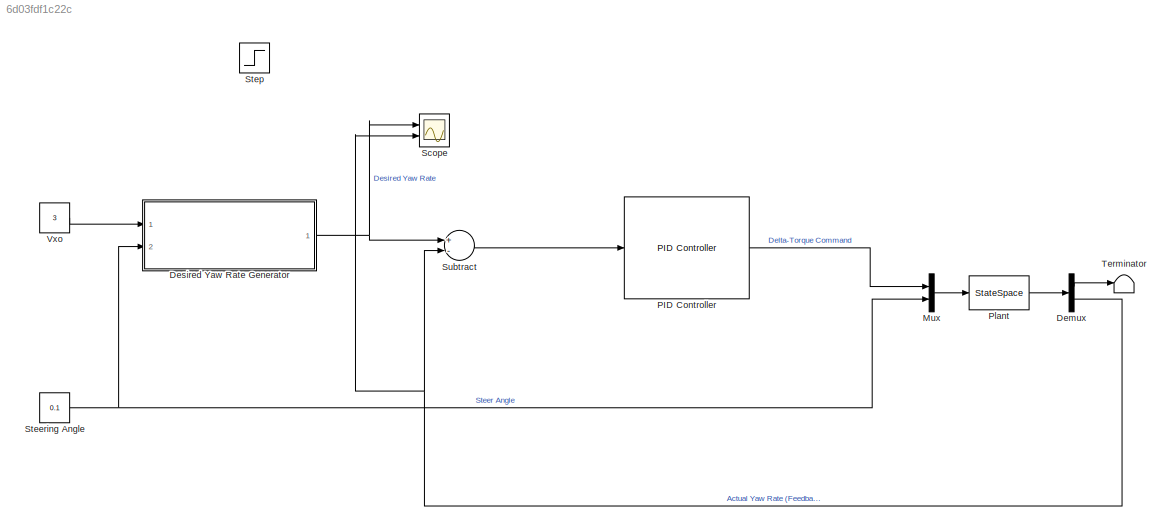
MODEL slx_6d03fdf1c22c
KIND model
CONFIG AbsTol = auto
CONFIG EnableMultiTasking = off
CONFIG FixedStep = auto
CONFIG MaxStep = auto
CONFIG MinStep = auto
CONFIG RelTol = 1e-3
CONFIG SampleTimeConstraint = Unconstrained
CONFIG Solver = VariableStepAuto
CONFIG SolverName = VariableStepAuto
CONFIG StartTime = 0.0
CONFIG StopTime = 10.0
BLOCK [Demux] Demux
  DisplayOption = bar
  Outputs = 2
  Ports = [1, 2]
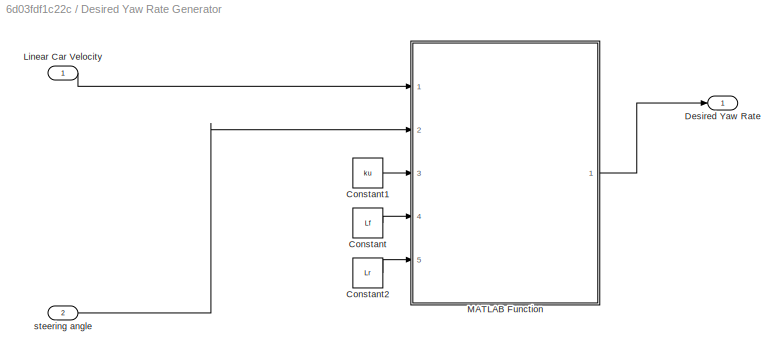
BLOCK [SubSystem] Desired Yaw Rate Generator
  Ports = [2, 1]
  RequestExecContextInheritance = off
BLOCK [Constant] Desired Yaw Rate Generator/Constant
  Value = Lf
BLOCK [Constant] Desired Yaw Rate Generator/Constant1
  Value = ku
BLOCK [Constant] Desired Yaw Rate Generator/Constant2
  Value = Lr
BLOCK [Outport] Desired Yaw Rate Generator/Desired Yaw Rate
  IconDisplay = Port number
BLOCK [Inport] Desired Yaw Rate Generator/Linear Car Velocity
  IconDisplay = Port number
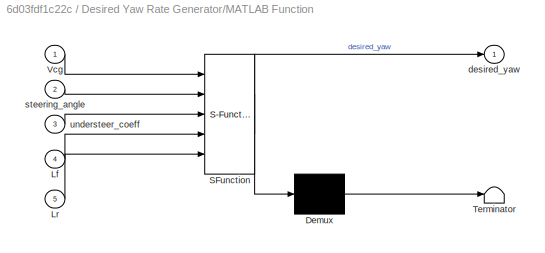
BLOCK [SubSystem] Desired Yaw Rate Generator/MATLAB Function
  ErrorFcn = Stateflow.Translate.translate
  PermitHierarchicalResolution = ExplicitOnly
  Ports = [5, 1]
  RequestExecContextInheritance = off
  SFBlockType = MATLAB Function
  TreatAsAtomicUnit = on
BLOCK [Demux] Desired Yaw Rate Generator/MATLAB Function/ Demux 
  Outputs = 1
  Ports = [1, 1]
BLOCK [S-Function] Desired Yaw Rate Generator/MATLAB Function/ SFunction 
  EnableBusSupport = on
  FunctionName = sf_sfun
  PortCounts = [5 2]
  Ports = [5, 2]
  SFcnIsStateOwnerBlock = off
  SFunctionDeploymentMode = off
  Tag = Stateflow S-Function model4tuningPIDs 2
BLOCK [Terminator] Desired Yaw Rate Generator/MATLAB Function/ Terminator 
BLOCK [Inport] Desired Yaw Rate Generator/MATLAB Function/Lf
  IconDisplay = Port number
  Port = 4
BLOCK [Inport] Desired Yaw Rate Generator/MATLAB Function/Lr
  IconDisplay = Port number
  Port = 5
BLOCK [Inport] Desired Yaw Rate Generator/MATLAB Function/Vcg
  IconDisplay = Port number
BLOCK [Outport] Desired Yaw Rate Generator/MATLAB Function/desired_yaw
  IconDisplay = Port number
BLOCK [Inport] Desired Yaw Rate Generator/MATLAB Function/steering_angle
  IconDisplay = Port number
  Port = 2
BLOCK [Inport] Desired Yaw Rate Generator/MATLAB Function/understeer_coeff
  IconDisplay = Port number
  Port = 3
BLOCK [Inport] Desired Yaw Rate Generator/steering angle
  IconDisplay = Port number
  Port = 2
BLOCK [Mux] Mux
  DisplayOption = bar
  Inputs = 2
  Ports = [2, 1]
BLOCK [Reference] PID Controller  REF=simulink/Continuous/PID Controller
  Ports = [1, 1]
  SourceBlock = simulink/Continuous/PID Controller
  SourceProductBaseCode = SL
  SourceProductName = Simulink
  SourceType = PID 1dof
BLOCK [StateSpace] Plant
  A = plants(:,:,1).A
  B = plants(:,:,1).B
  C = plants(:,:,1).C
  ContinuousStateAttributes = {'V_lat','yaw_rate'}
  D = plants(:,:,1).D
  InitialCondition = 0
  Ports = [1, 1]
BLOCK [Scope] Scope
  Floating = off
  NumInputPorts = 2
  Ports = [2]
  ScopeSpecificationString = Simulink.scopes.TimeScopeBlockCfg('CurrentConfiguration', extmgr.ConfigurationSet(extmgr.Configuration('Core','General UI',true),extmgr.Configuration('Core','Source UI',true),extmgr.Configuration('Sources','WiredSimulink',true),extmgr.Configuration('Visuals','Time Domain',true,'SerializedDisplays',{struct('MinYLimReal','-0.00479','MaxYLimReal','0.04313','YLabelReal','','MinYLimMag','0.00000','MaxY...<+1365ch>
BLOCK [Constant] Steering Angle
  Value = 0.1
BLOCK [Step] Step
  SampleTime = 0
BLOCK [Sum] Subtract
  InputSameDT = off
  Inputs = +-
  OutDataTypeStr = Inherit: Inherit via internal rule
  Ports = [2, 1]
  SaturateOnIntegerOverflow = off
BLOCK [Terminator] Terminator
BLOCK [Constant] Vxo
  Value = 3
LINE Demux:1 -> Terminator:1
NET Demux:2 -> Scope:2, Subtract:2
LINE Desired Yaw Rate Generator/Constant1:1 -> Desired Yaw Rate Generator/MATLAB Function:3
LINE Desired Yaw Rate Generator/Constant2:1 -> Desired Yaw Rate Generator/MATLAB Function:5
LINE Desired Yaw Rate Generator/Constant:1 -> Desired Yaw Rate Generator/MATLAB Function:4
LINE Desired Yaw Rate Generator/Linear Car Velocity:1 -> Desired Yaw Rate Generator/MATLAB Function:1
LINE Desired Yaw Rate Generator/MATLAB Function:1 -> Desired Yaw Rate Generator/Desired Yaw Rate:1
LINE Desired Yaw Rate Generator/steering angle:1 -> Desired Yaw Rate Generator/MATLAB Function:2
NET Desired Yaw Rate Generator:1 -> Scope:1, Subtract:1
LINE Mux:1 -> Plant:1
LINE PID Controller:1 -> Mux:1
LINE Plant:1 -> Demux:1
NET Steering Angle:1 -> Desired Yaw Rate Generator:2, Mux:2
LINE Subtract:1 -> PID Controller:1
LINE Vxo:1 -> Desired Yaw Rate Generator:1
note: NET lines group one-source signal fan-out (src -> all destinations, sorted); 1:1 wires keep LINE
CHART Desired Yaw Rate Generator/MATLAB Function states=1 transitions=1
  STATE_LABEL 'eML_blk_kernel()'
  STATE_LABEL 'SCRIPT:\nfunction desired_yaw = desiredYaw(Vcg , steering_angle, understeer_coeff, Lf, Lr)\ndesired_yaw = 0;\ndesired_yaw = Vcg*steering_angle/((Lf*Lr) + understeer_coeff*Vcg^2);\n'
